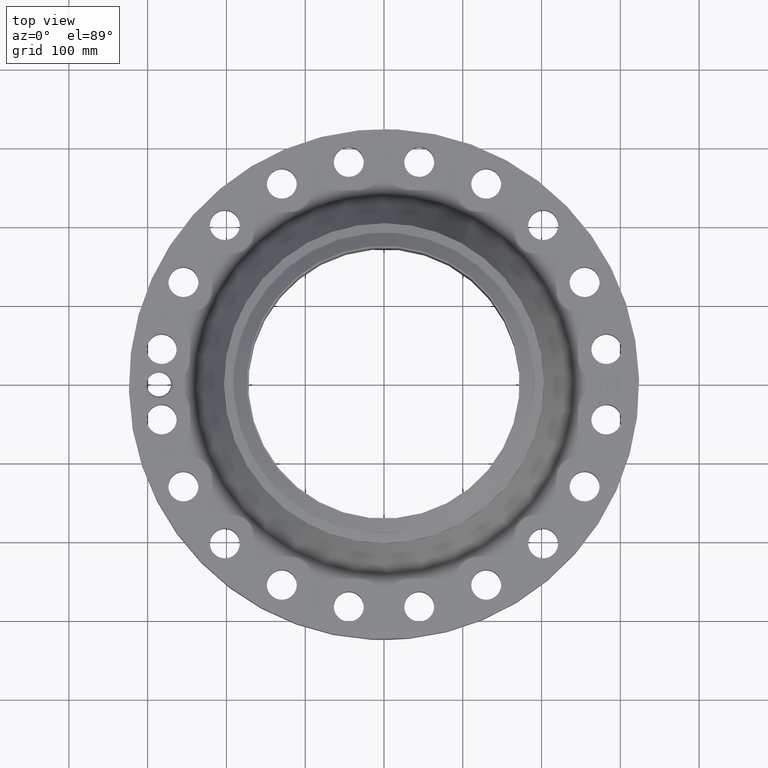
[diagram: clean part render]
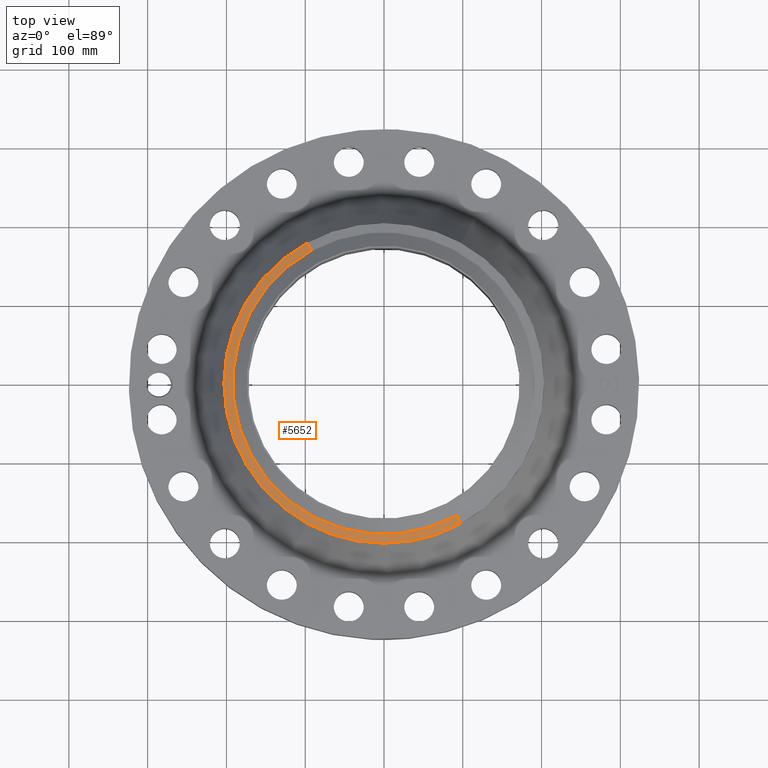
[diagram: same view with one face highlighted and labeled with its STEP entity id]
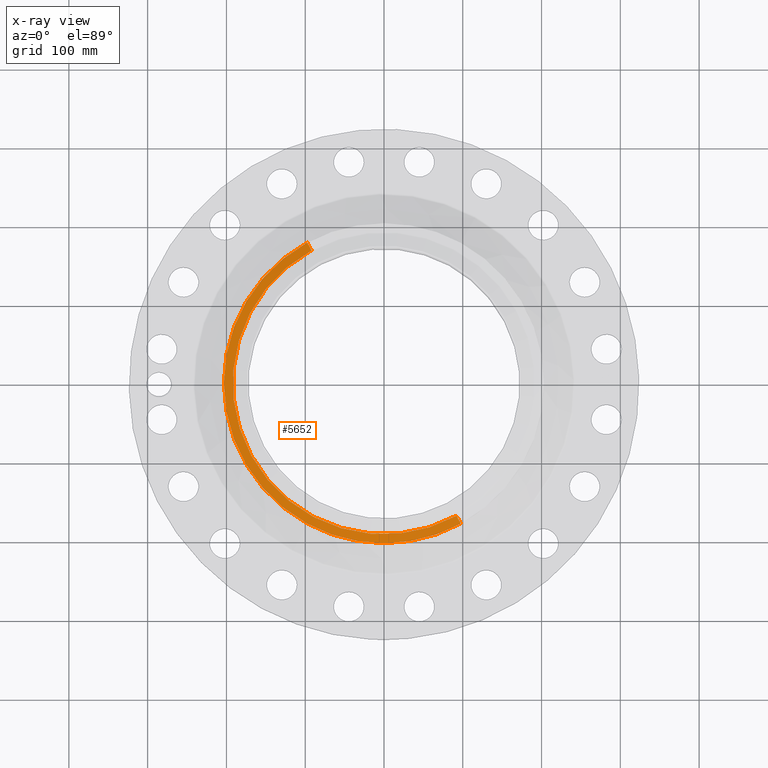
[diagram: x-ray of the same camera — body ghosted, the highlighted face saturated]
A machine part, top view. The second image highlights one B-rep face of the part: STEP entity #5652.
The next image is the same camera in x-ray: the body ghosted, the highlighted face saturated — about 0% of this face is hidden behind the body in this view.
In plain terms, the highlighted conical surface has half-angle 80 deg.
Its self-contained STEP definition (entity closure, byte-faithful):
#4174=AXIS2_PLACEMENT_3D('Circle Axis2P3D',#4172,#4173,$) ;
#4187=AXIS2_PLACEMENT_3D('Circle Axis2P3D',#4185,#4186,$) ;
#4987=AXIS2_PLACEMENT_3D('Circle Axis2P3D',#4985,#4986,$) ;
#5625=AXIS2_PLACEMENT_3D('Cone Axis2P3D',#5622,#5623,#5624) ;
#4155=CARTESIAN_POINT('Vertex',(-3.83540430885,-7.02066049515,5.6533902388)) ;
#4169=CARTESIAN_POINT('Vertex',(3.83540430885,-7.02066049515,5.6533902388)) ;
#4172=CARTESIAN_POINT('Axis2P3D Location',(0.,0.,5.6533902388)) ;
#4185=CARTESIAN_POINT('Axis2P3D Location',(0.,0.,5.6533902388)) ;
#4189=CARTESIAN_POINT('Vertex',(-3.83540430885,7.02066049515,5.6533902388)) ;
#4982=CARTESIAN_POINT('Vertex',(-3.62325554033,6.63232477921,5.73141601924)) ;
#4985=CARTESIAN_POINT('Axis2P3D Location',(0.,0.,5.73141601924)) ;
#4989=CARTESIAN_POINT('Vertex',(3.62325554033,-6.63232477921,5.73141601924)) ;
#5622=CARTESIAN_POINT('Axis2P3D Location',(0.,0.,5.73141601924)) ;
#5627=CARTESIAN_POINT('Line Origine',(-3.72932992459,6.82649263718,5.69240312902)) ;
#5632=CARTESIAN_POINT('Line Origine',(3.72932992459,-6.82649263718,5.69240312902)) ;
#4173=DIRECTION('Axis2P3D Direction',(0.,0.,-0.0393700787402)) ;
#4186=DIRECTION('Axis2P3D Direction',(0.,0.,-0.0393700787402)) ;
#4986=DIRECTION('Axis2P3D Direction',(0.,0.,0.0393700787402)) ;
#5623=DIRECTION('Axis2P3D Direction',(-0.,-0.,-0.0393700787402)) ;
#5624=DIRECTION('Axis2P3D XDirection',(0.0188750212049,-0.0345504945626,0.)) ;
#5628=DIRECTION('Vector Direction',(-0.0185882672208,0.0340255949157,-0.00683654242783)) ;
#5633=DIRECTION('Vector Direction',(0.0185882672208,-0.0340255949157,-0.00683654242783)) ;
#5629=VECTOR('Line Direction',#5628,0.0393700787402) ;
#5634=VECTOR('Line Direction',#5633,0.0393700787402) ;
#5646=ORIENTED_EDGE('',*,*,#5636,.F.) ;
#5647=ORIENTED_EDGE('',*,*,#4991,.F.) ;
#5648=ORIENTED_EDGE('',*,*,#5631,.T.) ;
#5649=ORIENTED_EDGE('',*,*,#4191,.T.) ;
#5650=ORIENTED_EDGE('',*,*,#4176,.F.) ;
#5652=ADVANCED_FACE('PartBody',(#5651),#5626,.T.) ;
#4175=CIRCLE('generated circle',#4174,8.00000000003) ;
#4188=CIRCLE('generated circle',#4187,8.00000000003) ;
#4988=CIRCLE('generated circle',#4987,7.55749380995) ;
#5626=CONICAL_SURFACE('Cone',#5625,7.55749380995,1.3962634016) ;
#4176=EDGE_CURVE('',#4170,#4156,#4175,.T.) ;
#4191=EDGE_CURVE('',#4190,#4156,#4188,.F.) ;
#4991=EDGE_CURVE('',#4983,#4990,#4988,.T.) ;
#5631=EDGE_CURVE('',#4983,#4190,#5630,.T.) ;
#5636=EDGE_CURVE('',#4990,#4170,#5635,.T.) ;
#5645=EDGE_LOOP('',(#5646,#5647,#5648,#5649,#5650)) ;
#5651=FACE_OUTER_BOUND('',#5645,.T.) ;
#5630=LINE('Line',#5627,#5629) ;
#5635=LINE('Line',#5632,#5634) ;
#4156=VERTEX_POINT('',#4155) ;
#4170=VERTEX_POINT('',#4169) ;
#4190=VERTEX_POINT('',#4189) ;
#4983=VERTEX_POINT('',#4982) ;
#4990=VERTEX_POINT('',#4989) ;